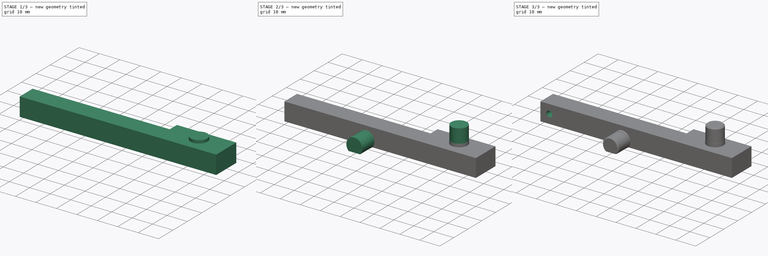
[diagram: build sequence overview — one tinted view per stage of 3, left to right]
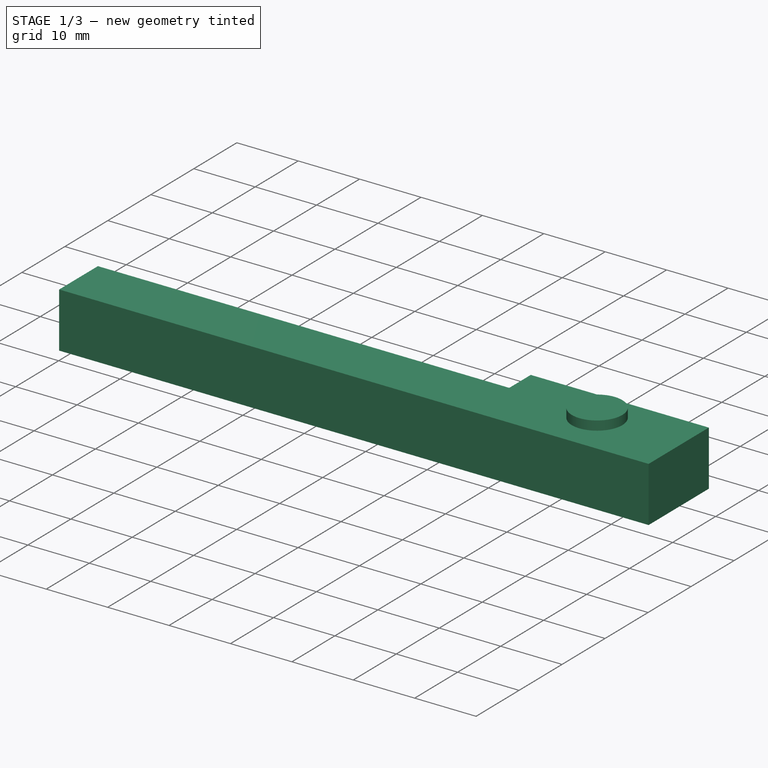
[diagram: stage 1 of 3 — iso view after this stage's code; geometry added in this stage tinted green]
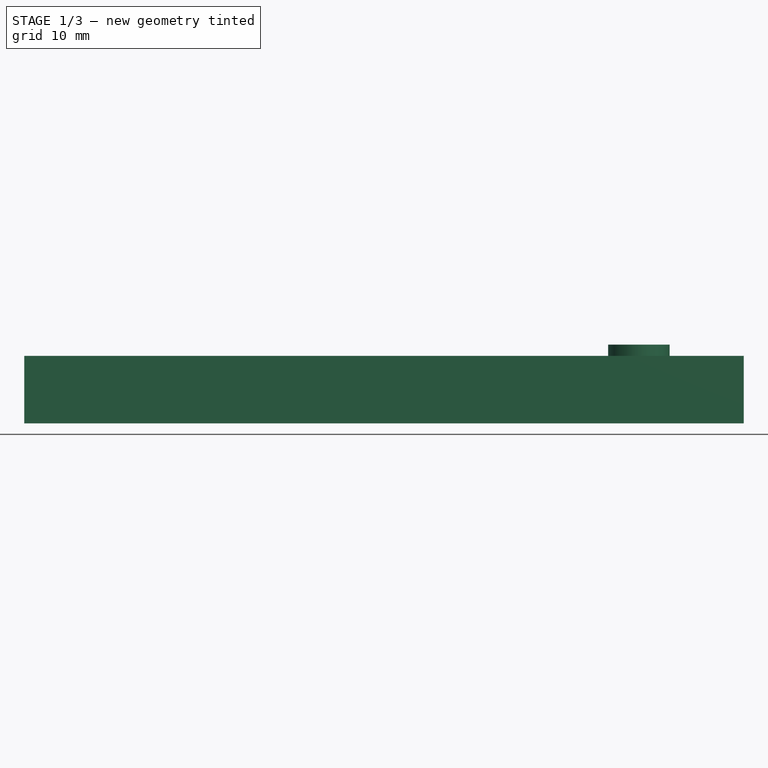
[diagram: stage 1 of 3 — front view after this stage's code; geometry added in this stage tinted green]
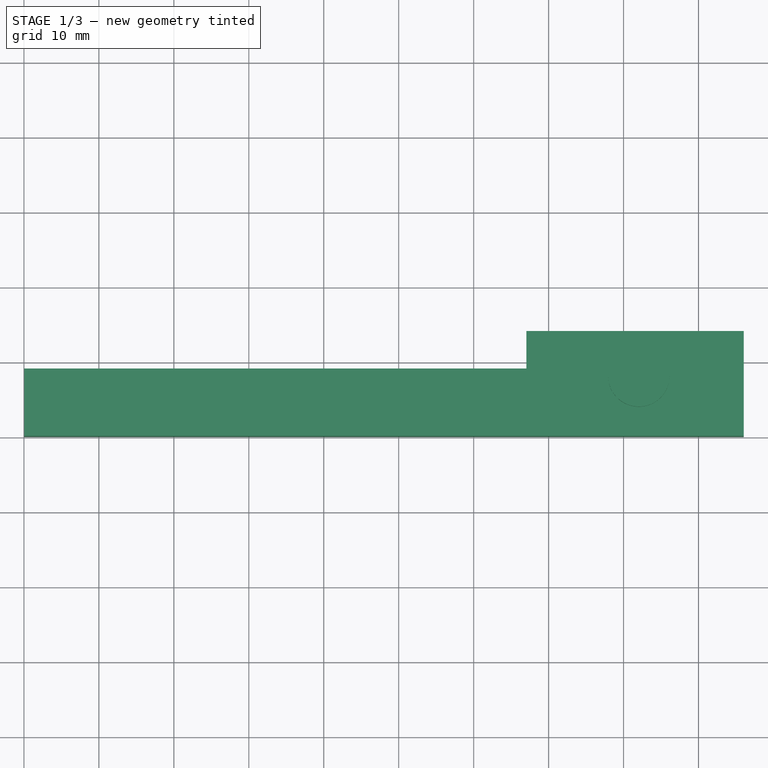
[diagram: stage 1 of 3 — top view after this stage's code; geometry added in this stage tinted green]
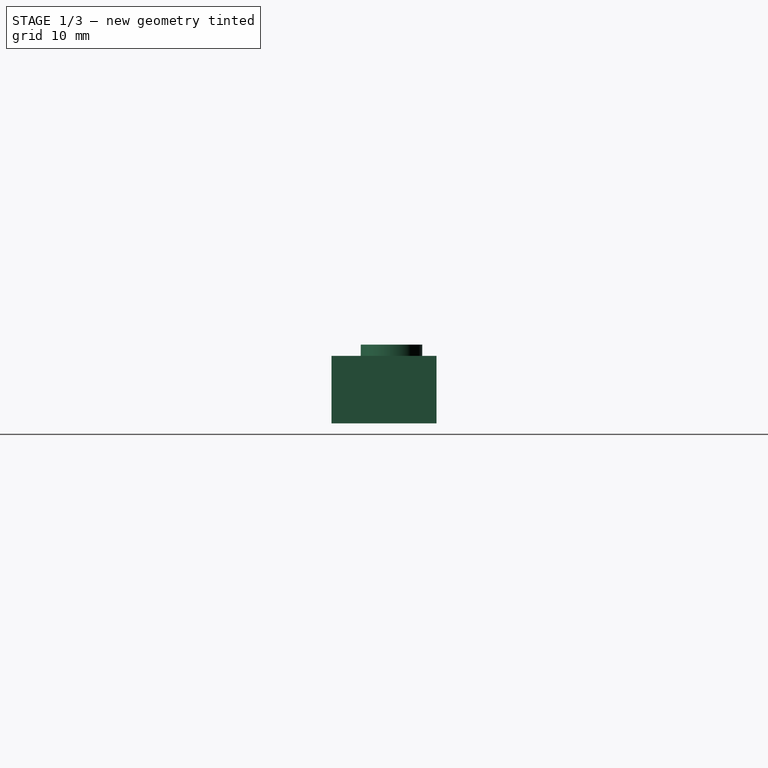
[diagram: stage 1 of 3 — right view after this stage's code; geometry added in this stage tinted green]
FCSTD DOCUMENT  (FreeCAD 0.14R3702 (Git))
Label: brazo-derecho
License: CC-BY 3.0
LicenseURL: http://creativecommons.org/licenses/by/3.0/
objects: Sketcher::SketchObject×6, PartDesign::Pad×5, PartDesign::Pocket×1, PartDesign::Chamfer×1
note: 19 computed .brp shape members not serialized (recipe doc carries the construction recipe); baked Part::Feature solids carry a one-line shape summary decoded from their .brp

FEATURE [Sketcher::SketchObject] Sketch  label="sk-main"
  sketch-geometry (6):
    g0: LineSegment StartX=-59.9627 StartY=0.0788386 StartZ=0 EndX=36.0373 EndY=0.0788386 EndZ=0
    g1: LineSegment StartX=36.0373 StartY=0.0788386 StartZ=0 EndX=36.0373 EndY=14.0788 EndZ=0
    g2: LineSegment StartX=36.0373 StartY=14.0788 StartZ=0 EndX=7.03727 EndY=14.0788 EndZ=0
    g3: LineSegment StartX=7.03727 StartY=14.0788 StartZ=0 EndX=7.03727 EndY=9.07884 EndZ=0
    g4: LineSegment StartX=7.03727 StartY=9.07884 StartZ=0 EndX=-59.9627 EndY=9.07884 EndZ=0
    g5: LineSegment StartX=-59.9627 StartY=9.07884 StartZ=0 EndX=-59.9627 EndY=0.0788386 EndZ=0
  constraints (16):
    c: Coincident(g0,g1)
    c: Coincident(g1,g2)
    c: Coincident(g2,g3)
    c: Coincident(g3,g4)
    c: Coincident(g4,g5)
    c: Coincident(g5,g0)
    c: Horizontal(g0)
    c: Horizontal(g2)
    c: DistanceX(g0) = 96
    c: DistanceX(g2) = -29
    c: Vertical(g5)
    c: Vertical(g1)
    c: Vertical(g3)
    c: Horizontal(g4)
    c: DistanceY(g5) = -9
    c: DistanceY(g1) = 14
FEATURE [PartDesign::Pad] Pad  label="pd-main"
  Length = 9
  Length2 = 5
  Sketch = -> Sketch
  Type = 0
FEATURE [Sketcher::SketchObject] Sketch001  label="sk-sep-rodamiento-muneca"
  ExternalGeometry = -> [Pad]
  Placement = pos=(0,0,9) rot=(0,0,1;0rad)
  Support = -> Pad [Face8]
  sketch-geometry (1):
    g0: Circle CenterX=22.0373 CenterY=8.07884 CenterZ=0 NormalX=0 NormalY=0 NormalZ=1 Radius=4.1
  constraints (3):
    c: Radius(g0) = 4.1
    c: Distance(g0,g-3) = 8
    c: Distance(g0,g-4) = 14
FEATURE [PartDesign::Pad] Pad001  label="pd-sep-rodamiento-muneca"
  Length = 1.5
  Length2 = 5
  Sketch = -> Sketch001
  Type = 0
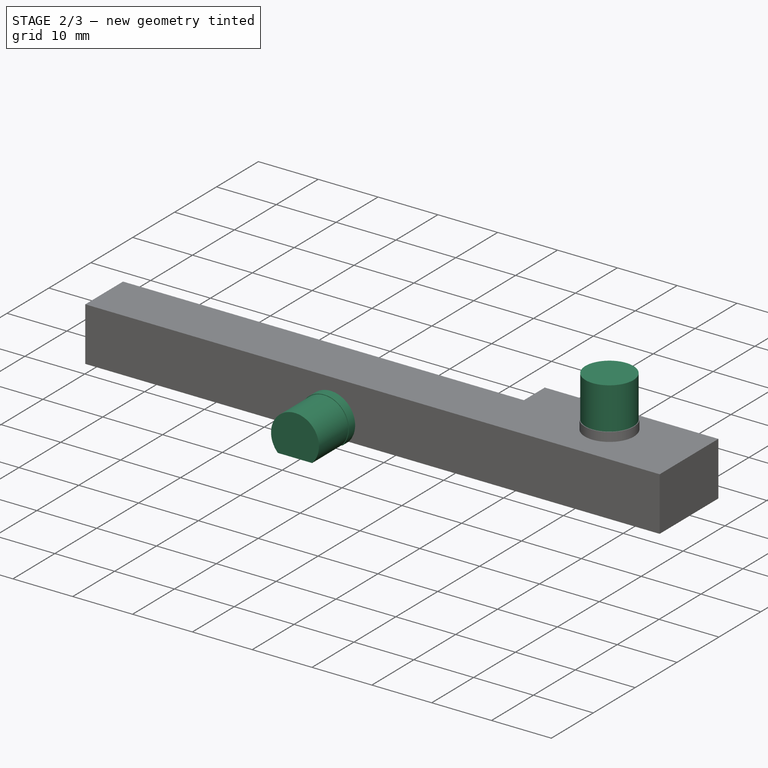
[diagram: stage 2 of 3 — iso view after this stage's code; geometry added in this stage tinted green]
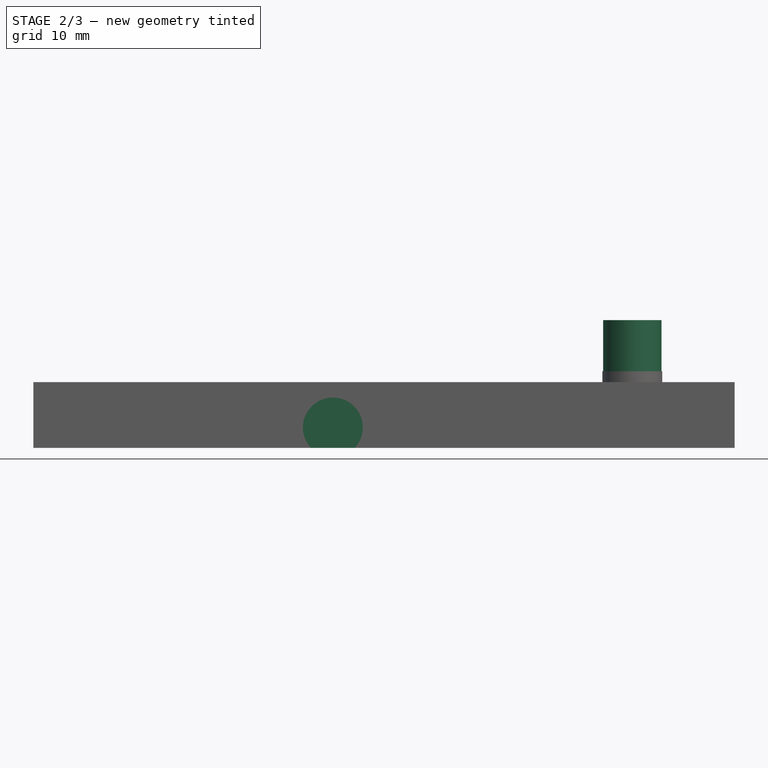
[diagram: stage 2 of 3 — front view after this stage's code; geometry added in this stage tinted green]
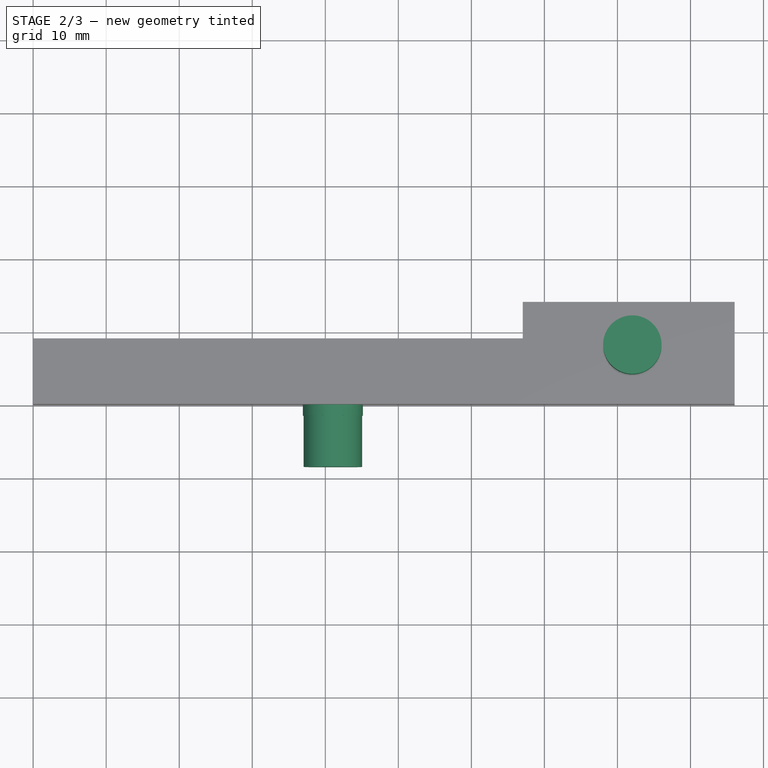
[diagram: stage 2 of 3 — top view after this stage's code; geometry added in this stage tinted green]
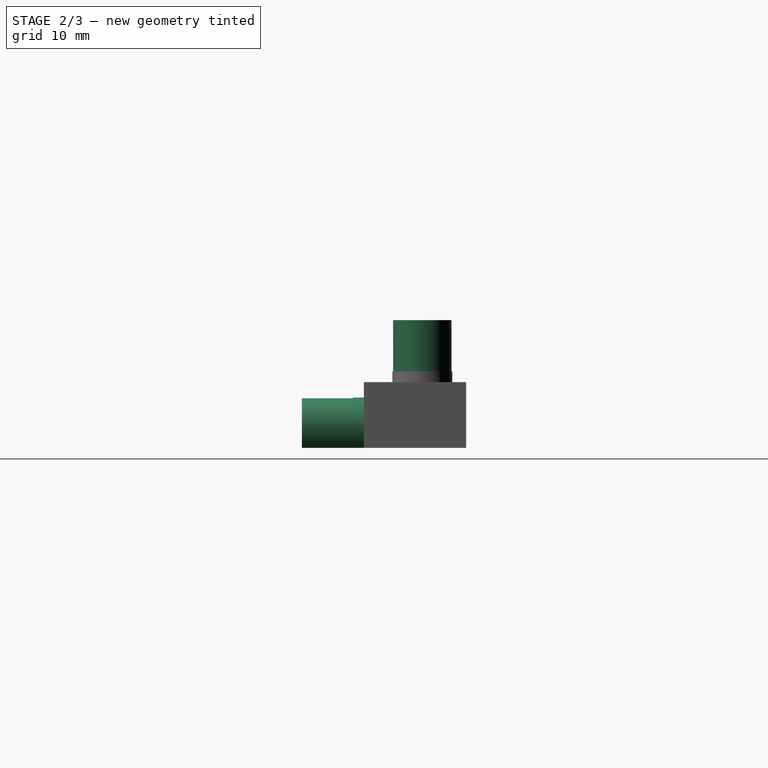
[diagram: stage 2 of 3 — right view after this stage's code; geometry added in this stage tinted green]
FEATURE [Sketcher::SketchObject] Sketch002  label="sk-rodamiento-muneca"
  ExternalGeometry = -> [Pad001]
  Placement = pos=(0,0,10.5) rot=(0,0,1;0rad)
  Support = -> Pad001 [Face10]
  sketch-geometry (1):
    g0: Circle CenterX=22.0373 CenterY=8.07884 CenterZ=0 NormalX=0 NormalY=0 NormalZ=1 Radius=4
  constraints (2):
    c: Coincident(g0,g-3)
    c: Radius(g0) = 4
FEATURE [PartDesign::Pad] Pad002  label="pd-rodamiento-muneca"
  Length = 7
  Length2 = 5
  Sketch = -> Sketch002
  Type = 0
FEATURE [Sketcher::SketchObject] Sketch003  label="sk-sep-rodamiento-brazo"
  ExternalGeometry = -> [Pad002]
  Placement = pos=(0,0.0788386,0) rot=(1,0,0;1.5708rad)
  Support = -> Pad002 [Face1]
  sketch-geometry (2):
    g0: ArcOfCircle CenterX=-18.9627 CenterY=2.79706 CenterZ=0 NormalX=0 NormalY=0 NormalZ=1 Radius=4.1 StartAngle=5.5324 EndAngle=10.1756
    g1: LineSegment StartX=-21.9605 StartY=0 StartZ=0 EndX=-15.965 EndY=0 EndZ=0
  constraints (6):
    c: Radius(g0) = 4.1
    c: Coincident(g0,g1)
    c: Coincident(g0,g1)
    c: PointOnObject(g0,g-3)
    c: Horizontal(g1)
    c: Distance(g0,g-4) = 41
FEATURE [PartDesign::Pad] Pad003  label="pd-sep-rodamiento-brazo"
  Length = 1.5
  Length2 = 5
  Sketch = -> Sketch003
  Type = 0
FEATURE [Sketcher::SketchObject] Sketch004  label="sk-rodamiento-brazo"
  ExternalGeometry = -> [Pad003]
  Placement = pos=(0,-1.42116,0) rot=(1,0,0;1.5708rad)
  Support = -> Pad003 [Face10]
  sketch-geometry (2):
    g0: ArcOfCircle CenterX=-18.9627 CenterY=2.79706 CenterZ=0 NormalX=0 NormalY=0 NormalZ=1 Radius=4 StartAngle=5.50882 EndAngle=10.1991
    g1: LineSegment StartX=-21.8222 StartY=0 StartZ=0 EndX=-16.1033 EndY=0 EndZ=0
  constraints (6):
    c: Coincident(g0,g1)
    c: Coincident(g0,g1)
    c: Radius(g0) = 4
    c: Coincident(g0,g-3)
    c: PointOnObject(g0,g-4)
    c: Horizontal(g1)
FEATURE [PartDesign::Pad] Pad004  label="sk-rodamiento-brazo001"
  Length = 7
  Length2 = 5
  Sketch = -> Sketch004
  Type = 0
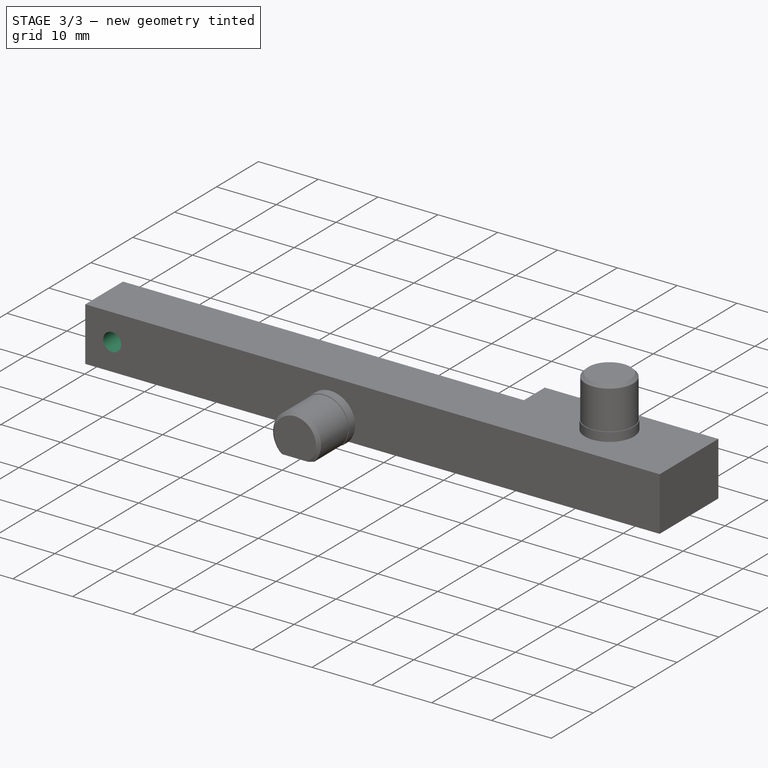
[diagram: stage 3 of 3 — iso view after this stage's code; geometry added in this stage tinted green]
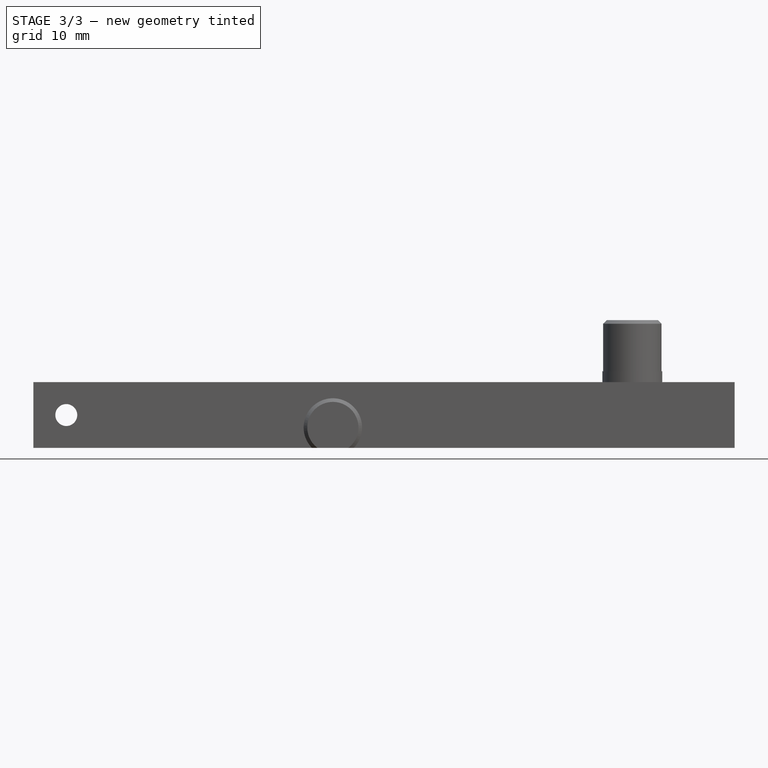
[diagram: stage 3 of 3 — front view after this stage's code; geometry added in this stage tinted green]
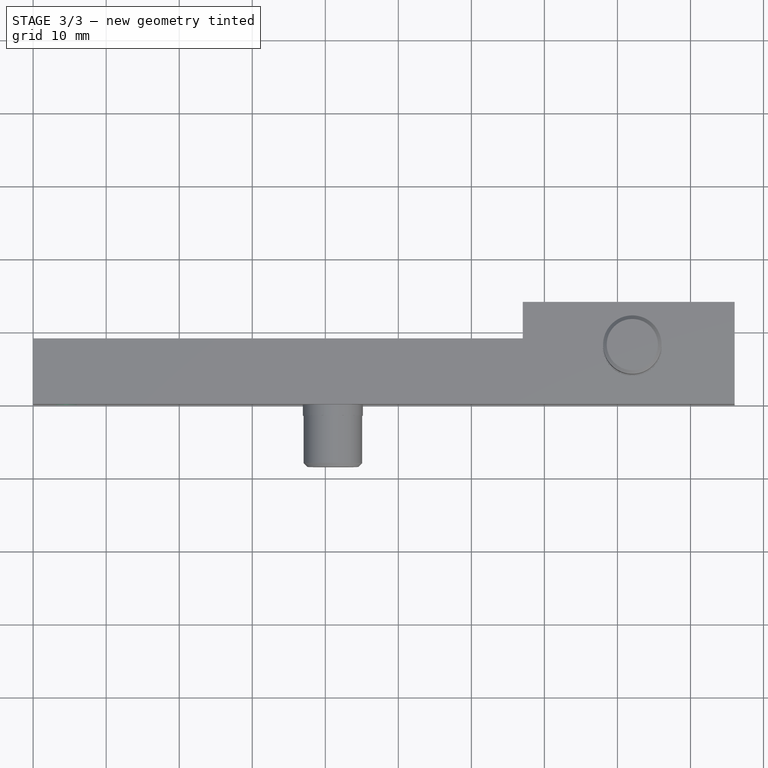
[diagram: stage 3 of 3 — top view after this stage's code; geometry added in this stage tinted green]
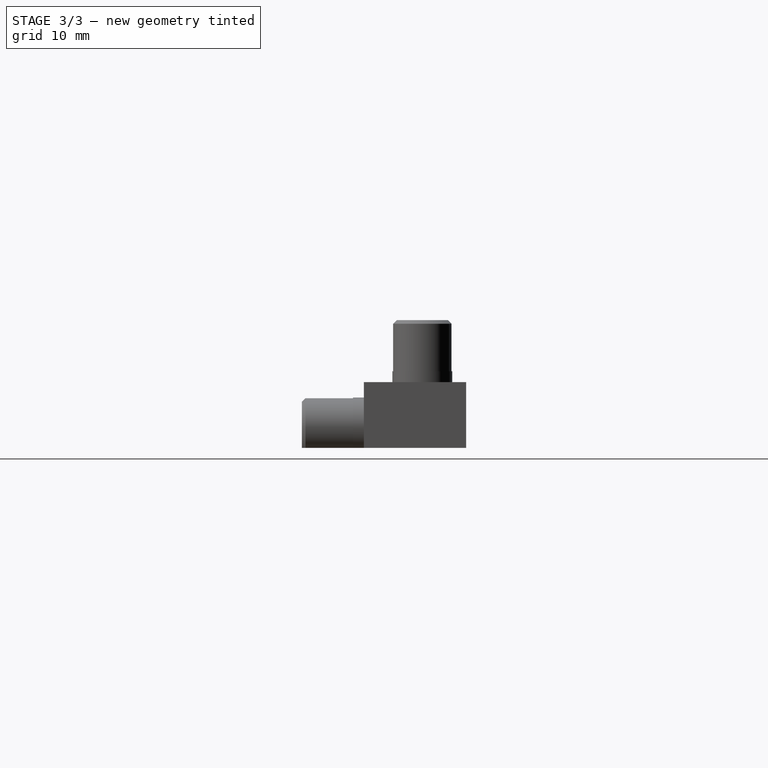
[diagram: stage 3 of 3 — right view after this stage's code; geometry added in this stage tinted green]
FEATURE [Sketcher::SketchObject] Sketch005  label="sk-taladro-tornillo-a-plaquitas"
  ExternalGeometry = -> [Pad004]
  Placement = pos=(0,9.07884,0) rot=(0,0.707107,0.707107;3.14159rad)
  Support = -> Pad004 [Face8]
  sketch-geometry (1):
    g0: Circle CenterX=55.4627 CenterY=4.5 CenterZ=0 NormalX=0 NormalY=0 NormalZ=1 Radius=1.5
  constraints (3):
    c: Radius(g0) = 1.5
    c: Distance(g0,g-4) = 4.5
    c: Distance(g0,g-3) = 4.5
FEATURE [PartDesign::Pocket] Pocket  label="pk-taladro-tornillo-a-plaquitas"
  Length = 5
  Sketch = -> Sketch005
  Type = 1
FEATURE [PartDesign::Chamfer] Chamfer  label="brazo-derecho"
  Base = -> Pocket [Edge34,Edge39]
  Size = 0.5
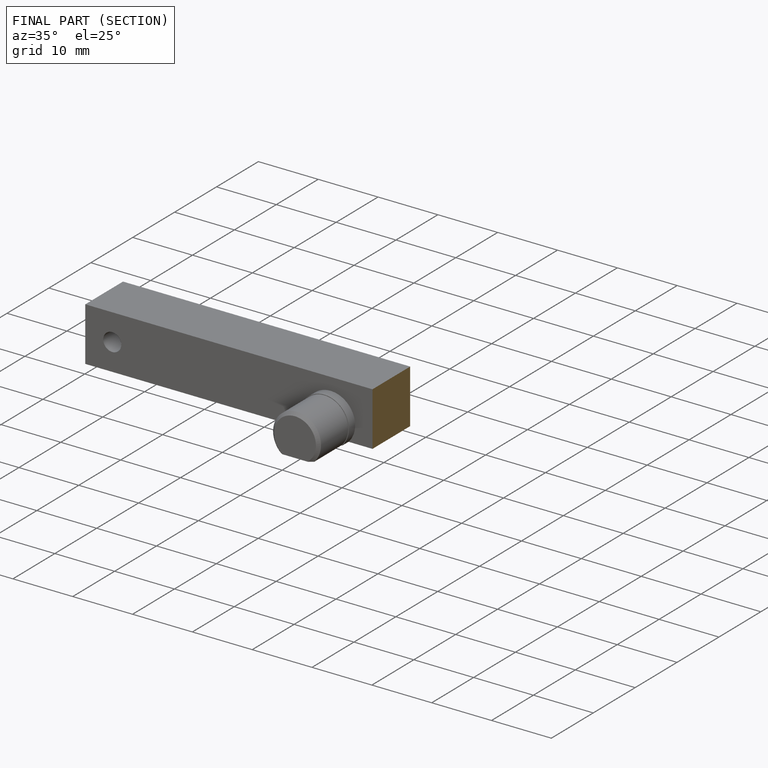
[diagram: finished part — half-section view (interior)]
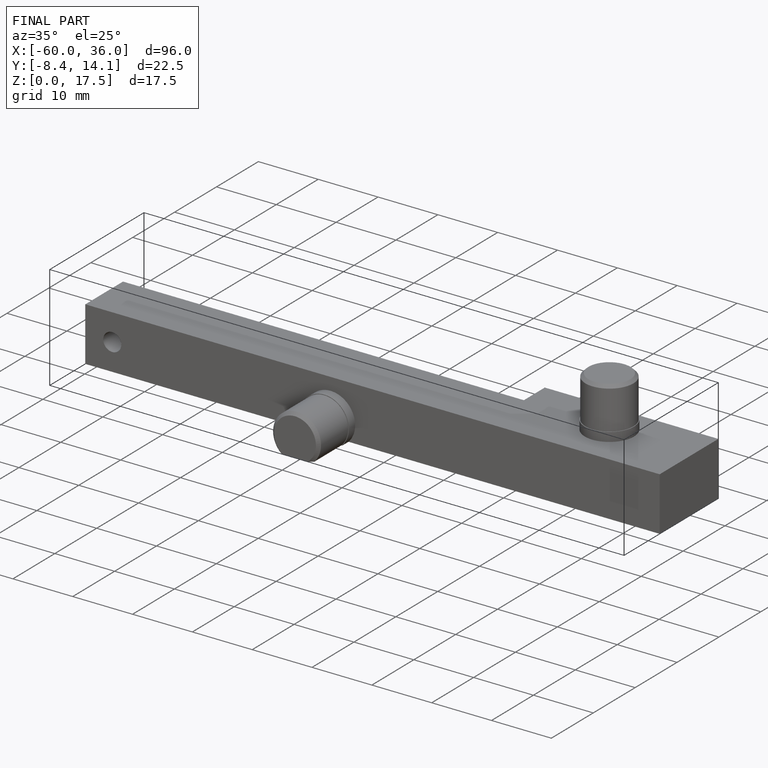
[diagram: finished part — iso view with bounding-box wireframe]
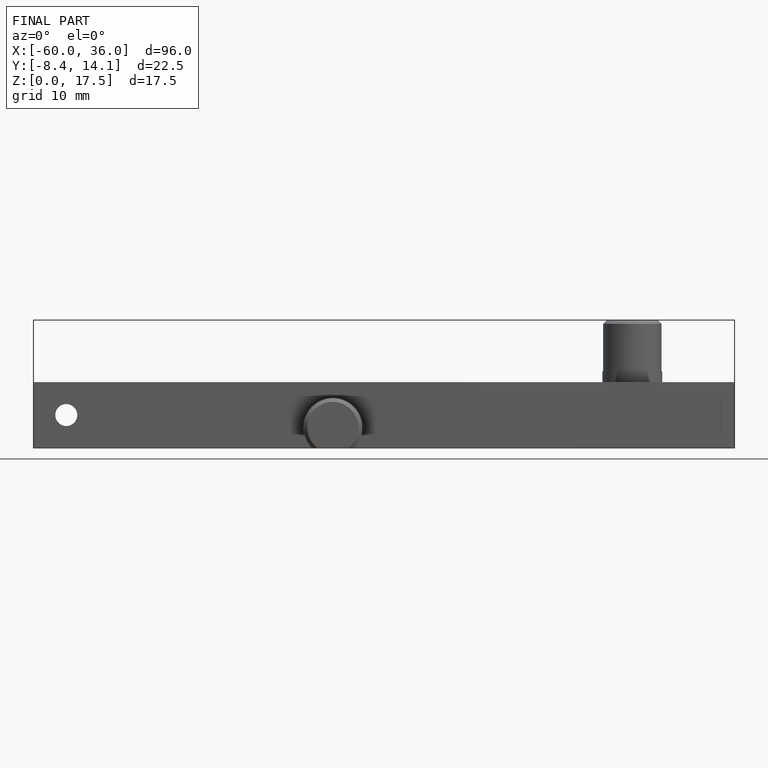
[diagram: finished part — front view with bounding-box wireframe]
